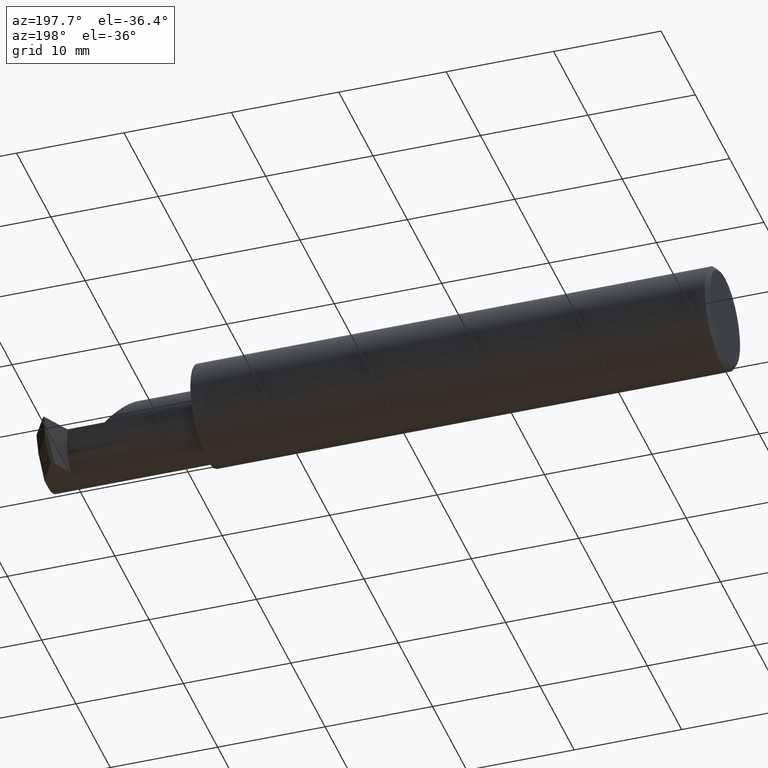
[diagram: clean part render]
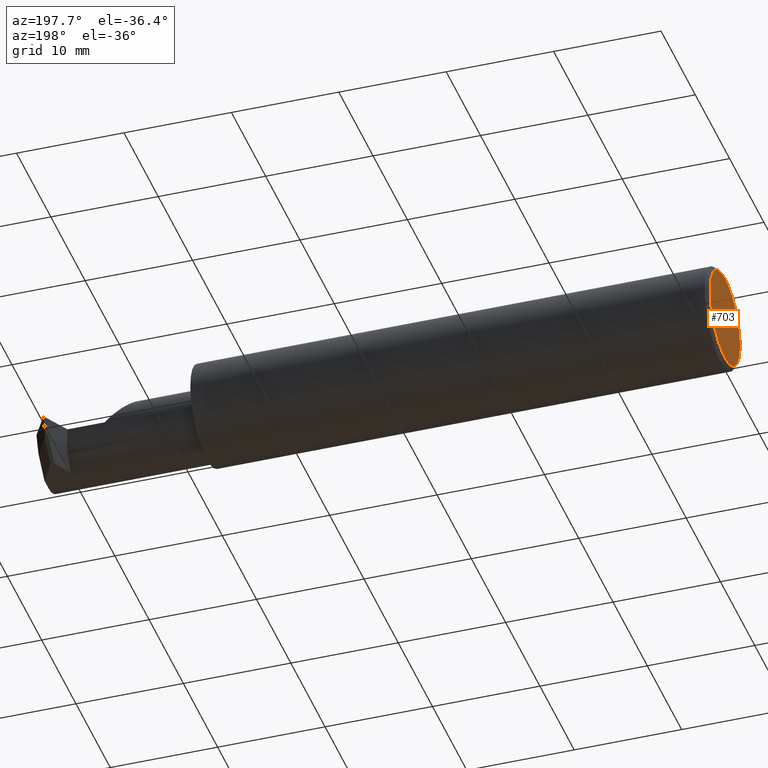
[diagram: same view with one face highlighted and labeled with its STEP entity id]
A machine part, auxiliary view. The second image highlights one B-rep face of the part: STEP entity #703.
In plain terms, the highlighted planar face has unit normal (1, 0, 0).
Its self-contained STEP definition (entity closure, byte-faithful):
#104 = ORIENTED_EDGE ( 'NONE', *, *, #244, .T. ) ;
#124 = AXIS2_PLACEMENT_3D ( 'NONE', #499, #648, #494 ) ;
#154 = EDGE_LOOP ( 'NONE', ( #504, #104 ) ) ;
#186 = CIRCLE ( 'NONE', #124, 0.1723499999999993371 ) ;
#203 = VERTEX_POINT ( 'NONE', #613 ) ;
#244 = EDGE_CURVE ( 'NONE', #203, #582, #186, .T. ) ;
#257 = AXIS2_PLACEMENT_3D ( 'NONE', #424, #702, #492 ) ;
#264 = FACE_OUTER_BOUND ( 'NONE', #154, .T. ) ;
#424 = CARTESIAN_POINT ( 'NONE',  ( 0.000000000000000000, 0.000000000000000000, 0.000000000000000000 ) ) ;
#478 = CARTESIAN_POINT ( 'NONE',  ( 0.000000000000000000, 0.000000000000000000, 0.000000000000000000 ) ) ;
#492 = DIRECTION ( 'NONE',  ( 0.000000000000000000, 0.000000000000000000, -1.000000000000000000 ) ) ;
#494 = DIRECTION ( 'NONE',  ( 0.000000000000000000, 0.000000000000000000, -1.000000000000000000 ) ) ;
#499 = CARTESIAN_POINT ( 'NONE',  ( 0.000000000000000000, 0.000000000000000000, 0.000000000000000000 ) ) ;
#504 = ORIENTED_EDGE ( 'NONE', *, *, #590, .T. ) ;
#540 = PLANE ( 'NONE',  #257 ) ;
#582 = VERTEX_POINT ( 'NONE', #836 ) ;
#590 = EDGE_CURVE ( 'NONE', #582, #203, #810, .T. ) ;
#613 = CARTESIAN_POINT ( 'NONE',  ( 0.000000000000000000, 2.202527268266510421E-17, 0.1723499999999993371 ) ) ;
#648 = DIRECTION ( 'NONE',  ( -1.000000000000000000, -0.000000000000000000, -0.000000000000000000 ) ) ;
#657 = AXIS2_PLACEMENT_3D ( 'NONE', #478, #681, #685 ) ;
#681 = DIRECTION ( 'NONE',  ( -1.000000000000000000, -0.000000000000000000, -0.000000000000000000 ) ) ;
#685 = DIRECTION ( 'NONE',  ( 0.000000000000000000, 0.000000000000000000, -1.000000000000000000 ) ) ;
#702 = DIRECTION ( 'NONE',  ( 1.000000000000000000, 0.000000000000000000, 0.000000000000000000 ) ) ;
#703 = ADVANCED_FACE ( 'NONE', ( #264 ), #540, .F. ) ;
#810 = CIRCLE ( 'NONE', #657, 0.1723499999999993371 ) ;
#836 = CARTESIAN_POINT ( 'NONE',  ( 0.000000000000000000, 0.000000000000000000, -0.1723499999999993371 ) ) ;